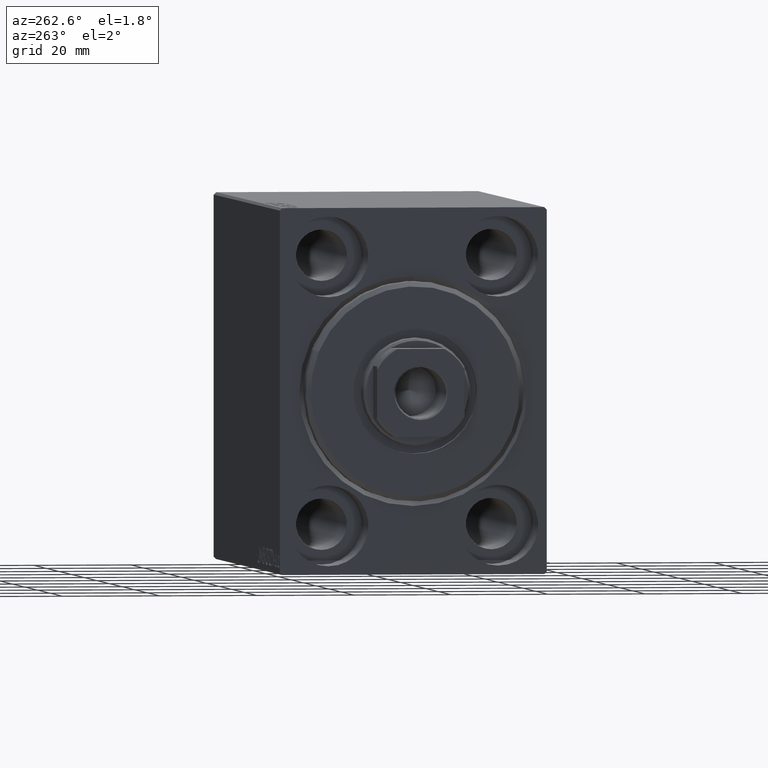
[diagram: clean part render]
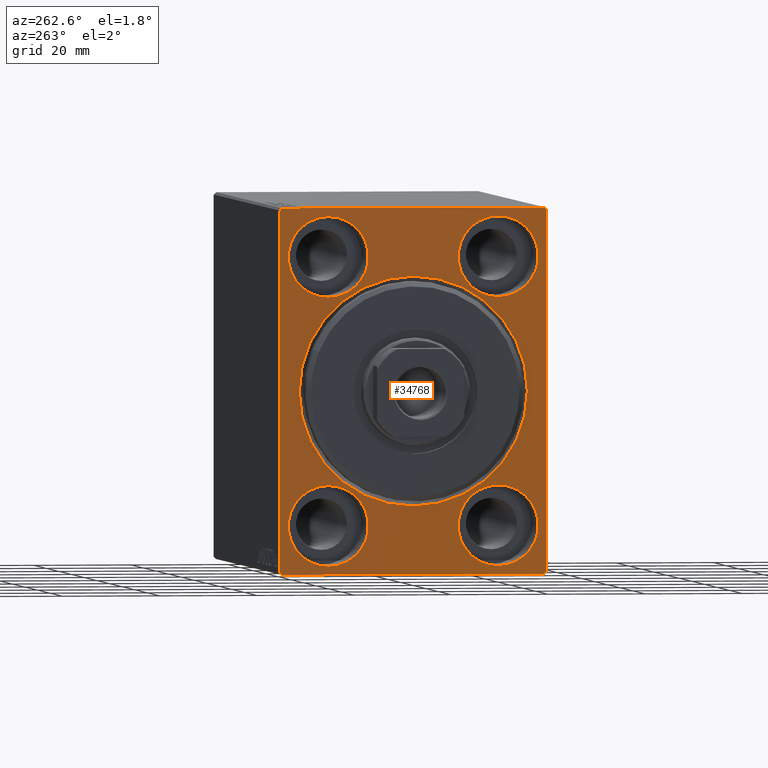
[diagram: same view with one face highlighted and labeled with its STEP entity id]
A machine part, auxiliary view. The second image highlights one B-rep face of the part: STEP entity #34768.
In plain terms, the highlighted planar face has unit normal (1, 0, 0).
Its self-contained STEP definition (entity closure, byte-faithful):
#478 = EDGE_CURVE ( 'NONE', #31639, #33640, #41066, .T. ) ;
#480 = FACE_BOUND ( 'NONE', #26193, .T. ) ;
#493 = DIRECTION ( 'NONE',  ( -1.000000000000000000, 0.000000000000000000, 0.000000000000000000 ) ) ;
#504 = CARTESIAN_POINT ( 'NONE',  ( 0.000000000000000000, 26.99999999999998934, -37.50000000000000000 ) ) ;
#532 = CARTESIAN_POINT ( 'NONE',  ( 0.000000000000000000, 17.49999999999999645, -27.50000000000000355 ) ) ;
#573 = CARTESIAN_POINT ( 'NONE',  ( 0.000000000000000000, -17.49999999999999645, 35.74999999999999289 ) ) ;
#574 = DIRECTION ( 'NONE',  ( -0.000000000000000000, -0.7071067811865378028, 0.7071067811865573427 ) ) ;
#606 = CIRCLE ( 'NONE', #25467, 23.50000000000001776 ) ;
#767 = CARTESIAN_POINT ( 'NONE',  ( 0.000000000000000000, 27.49999999999999645, 37.50000000000000711 ) ) ;
#820 = AXIS2_PLACEMENT_3D ( 'NONE', #1676, #25037, #21483 ) ;
#1562 = ORIENTED_EDGE ( 'NONE', *, *, #9619, .F. ) ;
#1676 = CARTESIAN_POINT ( 'NONE',  ( 0.000000000000000000, -17.50000000000000355, -27.50000000000000355 ) ) ;
#1781 = DIRECTION ( 'NONE',  ( 1.000000000000000000, 0.000000000000000000, 0.000000000000000000 ) ) ;
#2728 = DIRECTION ( 'NONE',  ( -0.000000000000000000, 0.7071067811865524577, -0.7071067811865426878 ) ) ;
#2744 = EDGE_LOOP ( 'NONE', ( #9754, #28466 ) ) ;
#3585 = CARTESIAN_POINT ( 'NONE',  ( 0.000000000000000000, -27.50000000000000355, -37.50000000000000000 ) ) ;
#3722 = VERTEX_POINT ( 'NONE', #12004 ) ;
#4247 = FACE_BOUND ( 'NONE', #21727, .T. ) ;
#4262 = CARTESIAN_POINT ( 'NONE',  ( 0.000000000000000000, -17.49999999999999645, 27.49999999999999645 ) ) ;
#4401 = EDGE_CURVE ( 'NONE', #37690, #7373, #41265, .T. ) ;
#4512 = CARTESIAN_POINT ( 'NONE',  ( 0.000000000000000000, 17.49999999999999645, -19.25000000000000355 ) ) ;
#4658 = ORIENTED_EDGE ( 'NONE', *, *, #478, .T. ) ;
#4699 = VERTEX_POINT ( 'NONE', #6527 ) ;
#4735 = LINE ( 'NONE', #18307, #11786 ) ;
#5407 = VERTEX_POINT ( 'NONE', #33953 ) ;
#5991 = VECTOR ( 'NONE', #33673, 1000.000000000000114 ) ;
#6527 = CARTESIAN_POINT ( 'NONE',  ( 0.000000000000000000, 17.49999999999999645, -35.75000000000000711 ) ) ;
#6559 = EDGE_CURVE ( 'NONE', #20325, #33640, #7629, .T. ) ;
#6669 = AXIS2_PLACEMENT_3D ( 'NONE', #13814, #30949, #30733 ) ;
#6951 = EDGE_CURVE ( 'NONE', #4699, #33368, #28156, .T. ) ;
#7060 = EDGE_CURVE ( 'NONE', #10775, #16719, #4735, .T. ) ;
#7373 = VERTEX_POINT ( 'NONE', #37373 ) ;
#7629 = LINE ( 'NONE', #28517, #34529 ) ;
#8371 = CARTESIAN_POINT ( 'NONE',  ( 0.000000000000000000, 26.99999999999999645, 37.50000000000000711 ) ) ;
#8529 = CARTESIAN_POINT ( 'NONE',  ( 0.000000000000000000, 0.000000000000000000, 0.000000000000000000 ) ) ;
#8622 = CIRCLE ( 'NONE', #820, 8.250000000000000000 ) ;
#9342 = ORIENTED_EDGE ( 'NONE', *, *, #13465, .F. ) ;
#9619 = EDGE_CURVE ( 'NONE', #31639, #16719, #21355, .T. ) ;
#9696 = ORIENTED_EDGE ( 'NONE', *, *, #20003, .F. ) ;
#9754 = ORIENTED_EDGE ( 'NONE', *, *, #43126, .F. ) ;
#10117 = DIRECTION ( 'NONE',  ( 0.000000000000000000, 0.000000000000000000, 1.000000000000000000 ) ) ;
#10507 = DIRECTION ( 'NONE',  ( 0.000000000000000000, 0.000000000000000000, 1.000000000000000000 ) ) ;
#10775 = VERTEX_POINT ( 'NONE', #42858 ) ;
#11252 = EDGE_CURVE ( 'NONE', #40422, #23190, #34524, .T. ) ;
#11353 = FACE_BOUND ( 'NONE', #2744, .T. ) ;
#11569 = AXIS2_PLACEMENT_3D ( 'NONE', #22782, #26341, #39909 ) ;
#11672 = CIRCLE ( 'NONE', #19488, 8.249999999999992895 ) ;
#11727 = DIRECTION ( 'NONE',  ( -1.000000000000000000, 0.000000000000000000, 0.000000000000000000 ) ) ;
#11786 = VECTOR ( 'NONE', #31872, 1000.000000000000114 ) ;
#12004 = CARTESIAN_POINT ( 'NONE',  ( 0.000000000000000000, 27.49999999999999645, 37.00000000000001421 ) ) ;
#12088 = ORIENTED_EDGE ( 'NONE', *, *, #35554, .T. ) ;
#12516 = AXIS2_PLACEMENT_3D ( 'NONE', #28421, #11727, #25295 ) ;
#12921 = EDGE_CURVE ( 'NONE', #33368, #4699, #26020, .T. ) ;
#13465 = EDGE_CURVE ( 'NONE', #24236, #16533, #17544, .T. ) ;
#13612 = LINE ( 'NONE', #30751, #18687 ) ;
#13814 = CARTESIAN_POINT ( 'NONE',  ( 0.000000000000000000, -17.49999999999999645, 27.49999999999999645 ) ) ;
#13826 = DIRECTION ( 'NONE',  ( 0.000000000000000000, 0.000000000000000000, -1.000000000000000000 ) ) ;
#14116 = DIRECTION ( 'NONE',  ( 0.000000000000000000, -1.000000000000000000, -1.261617073437677999E-16 ) ) ;
#14225 = ORIENTED_EDGE ( 'NONE', *, *, #12921, .F. ) ;
#14539 = ORIENTED_EDGE ( 'NONE', *, *, #7060, .T. ) ;
#15427 = DIRECTION ( 'NONE',  ( 0.000000000000000000, 0.000000000000000000, -1.000000000000000000 ) ) ;
#15665 = CARTESIAN_POINT ( 'NONE',  ( 0.000000000000000000, -27.00000000000001776, -37.50000000000000000 ) ) ;
#16533 = VERTEX_POINT ( 'NONE', #32109 ) ;
#16719 = VERTEX_POINT ( 'NONE', #504 ) ;
#17487 = CARTESIAN_POINT ( 'NONE',  ( 0.000000000000000000, -27.00000000000001776, -37.50000000000000000 ) ) ;
#17544 = CIRCLE ( 'NONE', #37430, 8.250000000000000000 ) ;
#18307 = CARTESIAN_POINT ( 'NONE',  ( 0.000000000000000000, 27.50000000000000355, -36.99999999999998579 ) ) ;
#18687 = VECTOR ( 'NONE', #2728, 1000.000000000000000 ) ;
#18830 = DIRECTION ( 'NONE',  ( 0.000000000000000000, 0.000000000000000000, 1.000000000000000000 ) ) ;
#18945 = EDGE_CURVE ( 'NONE', #23190, #40422, #606, .T. ) ;
#19047 = DIRECTION ( 'NONE',  ( -1.000000000000000000, 0.000000000000000000, 0.000000000000000000 ) ) ;
#19488 = AXIS2_PLACEMENT_3D ( 'NONE', #4262, #493, #10507 ) ;
#20003 = EDGE_CURVE ( 'NONE', #5407, #20421, #21943, .T. ) ;
#20170 = EDGE_CURVE ( 'NONE', #10775, #3722, #30411, .T. ) ;
#20325 = VERTEX_POINT ( 'NONE', #26789 ) ;
#20421 = VERTEX_POINT ( 'NONE', #24310 ) ;
#20620 = CARTESIAN_POINT ( 'NONE',  ( 0.000000000000000000, -17.49999999999999645, 19.25000000000000000 ) ) ;
#20764 = DIRECTION ( 'NONE',  ( 0.000000000000000000, 0.000000000000000000, 1.000000000000000000 ) ) ;
#20946 = ORIENTED_EDGE ( 'NONE', *, *, #4401, .F. ) ;
#20953 = VERTEX_POINT ( 'NONE', #573 ) ;
#21153 = FACE_OUTER_BOUND ( 'NONE', #30971, .T. ) ;
#21355 = LINE ( 'NONE', #3585, #40186 ) ;
#21371 = FACE_BOUND ( 'NONE', #28816, .T. ) ;
#21380 = ORIENTED_EDGE ( 'NONE', *, *, #29746, .F. ) ;
#21483 = DIRECTION ( 'NONE',  ( 0.000000000000000000, 0.000000000000000000, 1.000000000000000000 ) ) ;
#21727 = EDGE_LOOP ( 'NONE', ( #14225, #36058 ) ) ;
#21943 = CIRCLE ( 'NONE', #30510, 8.249999999999992895 ) ;
#22011 = ORIENTED_EDGE ( 'NONE', *, *, #20170, .F. ) ;
#22782 = CARTESIAN_POINT ( 'NONE',  ( 0.000000000000000000, 17.50000000000000355, 27.49999999999999645 ) ) ;
#23190 = VERTEX_POINT ( 'NONE', #39394 ) ;
#24105 = DIRECTION ( 'NONE',  ( 0.000000000000000000, 0.000000000000000000, -1.000000000000000000 ) ) ;
#24236 = VERTEX_POINT ( 'NONE', #25778 ) ;
#24310 = CARTESIAN_POINT ( 'NONE',  ( 0.000000000000000000, 17.50000000000000355, 19.25000000000000000 ) ) ;
#24593 = AXIS2_PLACEMENT_3D ( 'NONE', #532, #40593, #10117 ) ;
#24762 = DIRECTION ( 'NONE',  ( -1.000000000000000000, 0.000000000000000000, 0.000000000000000000 ) ) ;
#24926 = PLANE ( 'NONE',  #27256 ) ;
#24944 = ORIENTED_EDGE ( 'NONE', *, *, #39567, .F. ) ;
#24971 = CARTESIAN_POINT ( 'NONE',  ( 0.000000000000000000, -17.50000000000000355, -27.50000000000000355 ) ) ;
#25037 = DIRECTION ( 'NONE',  ( -1.000000000000000000, 0.000000000000000000, 0.000000000000000000 ) ) ;
#25295 = DIRECTION ( 'NONE',  ( 0.000000000000000000, 0.000000000000000000, 1.000000000000000000 ) ) ;
#25467 = AXIS2_PLACEMENT_3D ( 'NONE', #8529, #39230, #15427 ) ;
#25778 = CARTESIAN_POINT ( 'NONE',  ( 0.000000000000000000, -17.50000000000000355, -19.25000000000000355 ) ) ;
#26020 = CIRCLE ( 'NONE', #12516, 8.250000000000000000 ) ;
#26193 = EDGE_LOOP ( 'NONE', ( #9342, #21380 ) ) ;
#26341 = DIRECTION ( 'NONE',  ( -1.000000000000000000, 0.000000000000000000, 0.000000000000000000 ) ) ;
#26789 = CARTESIAN_POINT ( 'NONE',  ( 0.000000000000000000, -27.50000000000000355, 37.00000000000000000 ) ) ;
#27222 = LINE ( 'NONE', #33901, #5991 ) ;
#27256 = AXIS2_PLACEMENT_3D ( 'NONE', #27620, #30745, #13826 ) ;
#27280 = VECTOR ( 'NONE', #574, 1000.000000000000000 ) ;
#27620 = CARTESIAN_POINT ( 'NONE',  ( 0.000000000000000000, 0.000000000000000000, 0.000000000000000000 ) ) ;
#28096 = CARTESIAN_POINT ( 'NONE',  ( 0.000000000000000000, 0.000000000000000000, 23.50000000000001776 ) ) ;
#28156 = CIRCLE ( 'NONE', #24593, 8.250000000000000000 ) ;
#28421 = CARTESIAN_POINT ( 'NONE',  ( 0.000000000000000000, 17.49999999999999645, -27.50000000000000355 ) ) ;
#28466 = ORIENTED_EDGE ( 'NONE', *, *, #40643, .F. ) ;
#28517 = CARTESIAN_POINT ( 'NONE',  ( 0.000000000000000000, -27.50000000000000355, 37.50000000000000000 ) ) ;
#28816 = EDGE_LOOP ( 'NONE', ( #28987, #30794 ) ) ;
#28921 = DIRECTION ( 'NONE',  ( 0.000000000000000000, 0.000000000000000000, -1.000000000000000000 ) ) ;
#28987 = ORIENTED_EDGE ( 'NONE', *, *, #11252, .T. ) ;
#29284 = CARTESIAN_POINT ( 'NONE',  ( 0.000000000000000000, 17.50000000000000355, 27.49999999999999645 ) ) ;
#29746 = EDGE_CURVE ( 'NONE', #16533, #24236, #8622, .T. ) ;
#30411 = LINE ( 'NONE', #43962, #38991 ) ;
#30510 = AXIS2_PLACEMENT_3D ( 'NONE', #29284, #19047, #18830 ) ;
#30733 = DIRECTION ( 'NONE',  ( 0.000000000000000000, 0.000000000000000000, 1.000000000000000000 ) ) ;
#30745 = DIRECTION ( 'NONE',  ( 1.000000000000000000, 0.000000000000000000, 0.000000000000000000 ) ) ;
#30751 = CARTESIAN_POINT ( 'NONE',  ( 0.000000000000000000, 26.99999999999999645, 37.50000000000000711 ) ) ;
#30794 = ORIENTED_EDGE ( 'NONE', *, *, #18945, .T. ) ;
#30949 = DIRECTION ( 'NONE',  ( -1.000000000000000000, 0.000000000000000000, 0.000000000000000000 ) ) ;
#30971 = EDGE_LOOP ( 'NONE', ( #37152, #32257, #20946, #12088, #22011, #14539, #1562, #4658 ) ) ;
#31639 = VERTEX_POINT ( 'NONE', #15665 ) ;
#31872 = DIRECTION ( 'NONE',  ( 0.000000000000000000, -0.7071067811865474617, -0.7071067811865474617 ) ) ;
#32109 = CARTESIAN_POINT ( 'NONE',  ( 0.000000000000000000, -17.50000000000000355, -35.75000000000000711 ) ) ;
#32208 = CIRCLE ( 'NONE', #6669, 8.249999999999992895 ) ;
#32257 = ORIENTED_EDGE ( 'NONE', *, *, #37849, .T. ) ;
#33039 = VECTOR ( 'NONE', #14116, 1000.000000000000000 ) ;
#33368 = VERTEX_POINT ( 'NONE', #4512 ) ;
#33640 = VERTEX_POINT ( 'NONE', #39866 ) ;
#33673 = DIRECTION ( 'NONE',  ( -0.000000000000000000, 0.7071067811865474617, 0.7071067811865474617 ) ) ;
#33810 = AXIS2_PLACEMENT_3D ( 'NONE', #42039, #1781, #28921 ) ;
#33901 = CARTESIAN_POINT ( 'NONE',  ( 0.000000000000000000, -27.50000000000000355, 37.00000000000000000 ) ) ;
#33953 = CARTESIAN_POINT ( 'NONE',  ( 0.000000000000000000, 17.50000000000000355, 35.74999999999999289 ) ) ;
#34524 = CIRCLE ( 'NONE', #33810, 23.50000000000001776 ) ;
#34529 = VECTOR ( 'NONE', #24105, 1000.000000000000000 ) ;
#34768 = ADVANCED_FACE ( 'NONE', ( #21371, #4247, #11353, #35152, #480, #21153 ), #24926, .F. ) ;
#35152 = FACE_BOUND ( 'NONE', #42565, .T. ) ;
#35554 = EDGE_CURVE ( 'NONE', #37690, #3722, #13612, .T. ) ;
#36058 = ORIENTED_EDGE ( 'NONE', *, *, #6951, .F. ) ;
#37152 = ORIENTED_EDGE ( 'NONE', *, *, #6559, .F. ) ;
#37373 = CARTESIAN_POINT ( 'NONE',  ( 0.000000000000000000, -27.00000000000000355, 37.50000000000000000 ) ) ;
#37430 = AXIS2_PLACEMENT_3D ( 'NONE', #24971, #24762, #20764 ) ;
#37690 = VERTEX_POINT ( 'NONE', #8371 ) ;
#37849 = EDGE_CURVE ( 'NONE', #20325, #7373, #27222, .T. ) ;
#38991 = VECTOR ( 'NONE', #43741, 1000.000000000000000 ) ;
#39230 = DIRECTION ( 'NONE',  ( 1.000000000000000000, 0.000000000000000000, 0.000000000000000000 ) ) ;
#39394 = CARTESIAN_POINT ( 'NONE',  ( 0.000000000000000000, 2.877919977996282293E-15, -23.50000000000001776 ) ) ;
#39567 = EDGE_CURVE ( 'NONE', #20421, #5407, #41425, .T. ) ;
#39866 = CARTESIAN_POINT ( 'NONE',  ( 0.000000000000000000, -27.50000000000000355, -37.00000000000000000 ) ) ;
#39909 = DIRECTION ( 'NONE',  ( 0.000000000000000000, 0.000000000000000000, 1.000000000000000000 ) ) ;
#40186 = VECTOR ( 'NONE', #41169, 1000.000000000000000 ) ;
#40422 = VERTEX_POINT ( 'NONE', #28096 ) ;
#40593 = DIRECTION ( 'NONE',  ( -1.000000000000000000, 0.000000000000000000, 0.000000000000000000 ) ) ;
#40643 = EDGE_CURVE ( 'NONE', #42557, #20953, #32208, .T. ) ;
#41066 = LINE ( 'NONE', #17487, #27280 ) ;
#41169 = DIRECTION ( 'NONE',  ( 0.000000000000000000, 1.000000000000000000, 0.000000000000000000 ) ) ;
#41265 = LINE ( 'NONE', #767, #33039 ) ;
#41425 = CIRCLE ( 'NONE', #11569, 8.249999999999992895 ) ;
#42039 = CARTESIAN_POINT ( 'NONE',  ( 0.000000000000000000, 0.000000000000000000, 0.000000000000000000 ) ) ;
#42557 = VERTEX_POINT ( 'NONE', #20620 ) ;
#42565 = EDGE_LOOP ( 'NONE', ( #9696, #24944 ) ) ;
#42858 = CARTESIAN_POINT ( 'NONE',  ( 0.000000000000000000, 27.50000000000000355, -36.99999999999998579 ) ) ;
#43126 = EDGE_CURVE ( 'NONE', #20953, #42557, #11672, .T. ) ;
#43741 = DIRECTION ( 'NONE',  ( 0.000000000000000000, -9.251858538542970348E-17, 1.000000000000000000 ) ) ;
#43962 = CARTESIAN_POINT ( 'NONE',  ( 0.000000000000000000, 27.50000000000000355, -37.50000000000000000 ) ) ;